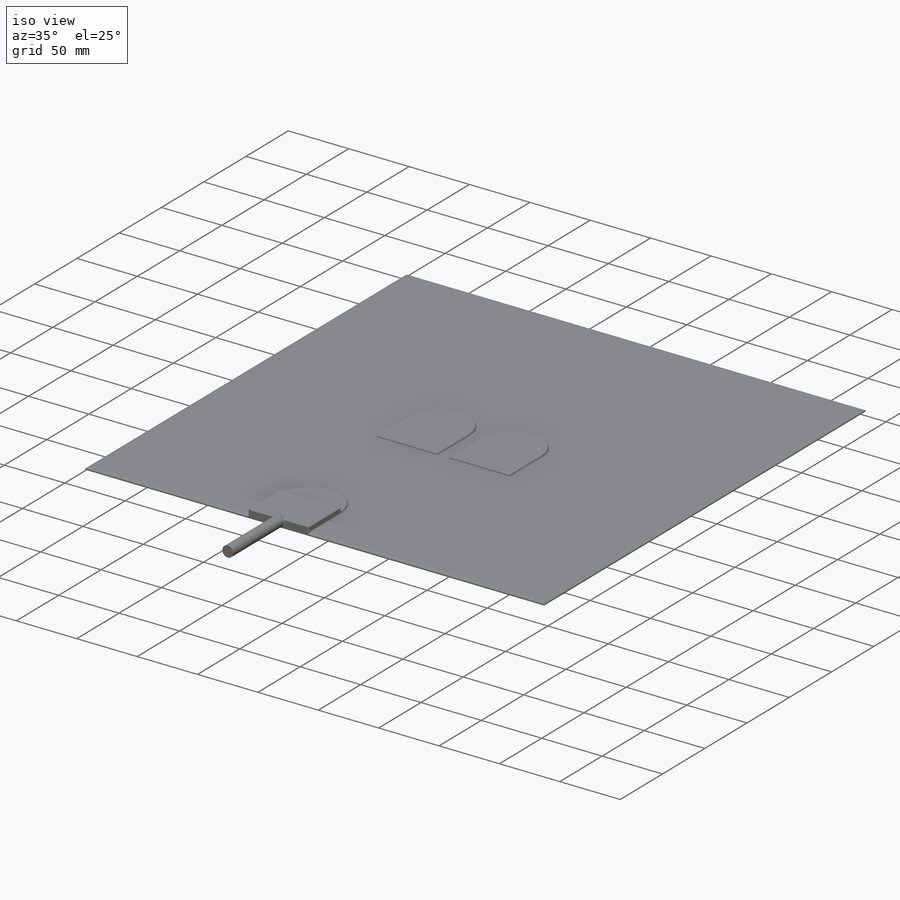
[diagram: iso view]
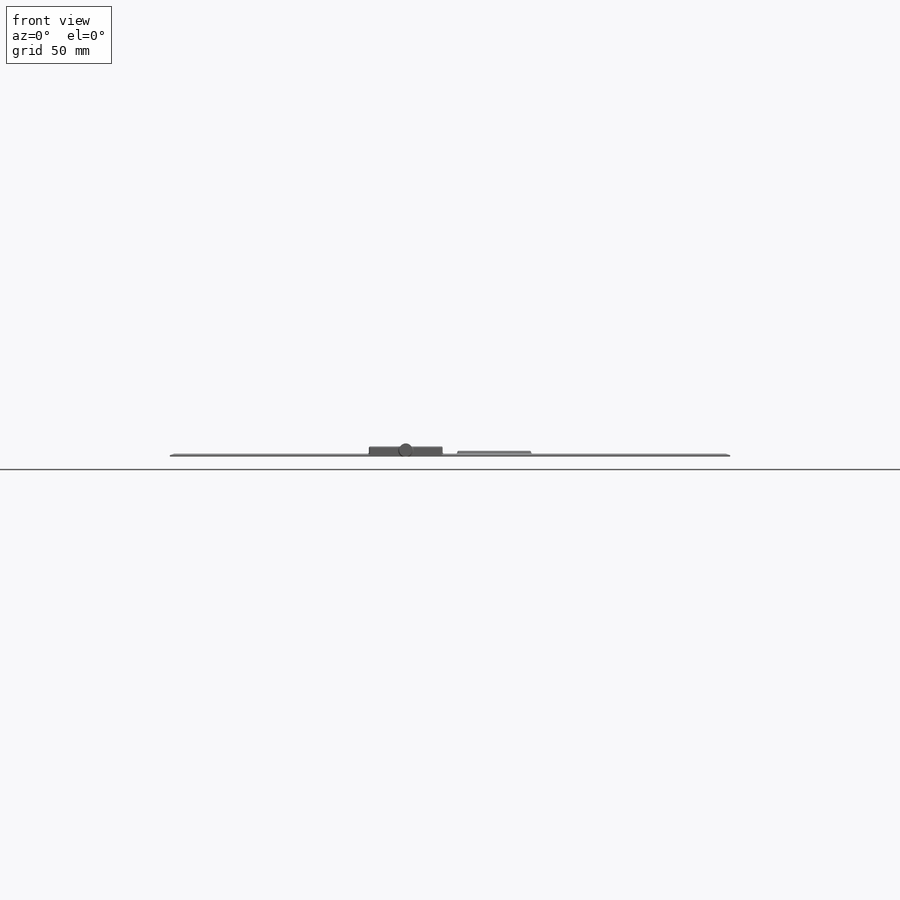
[diagram: front view]
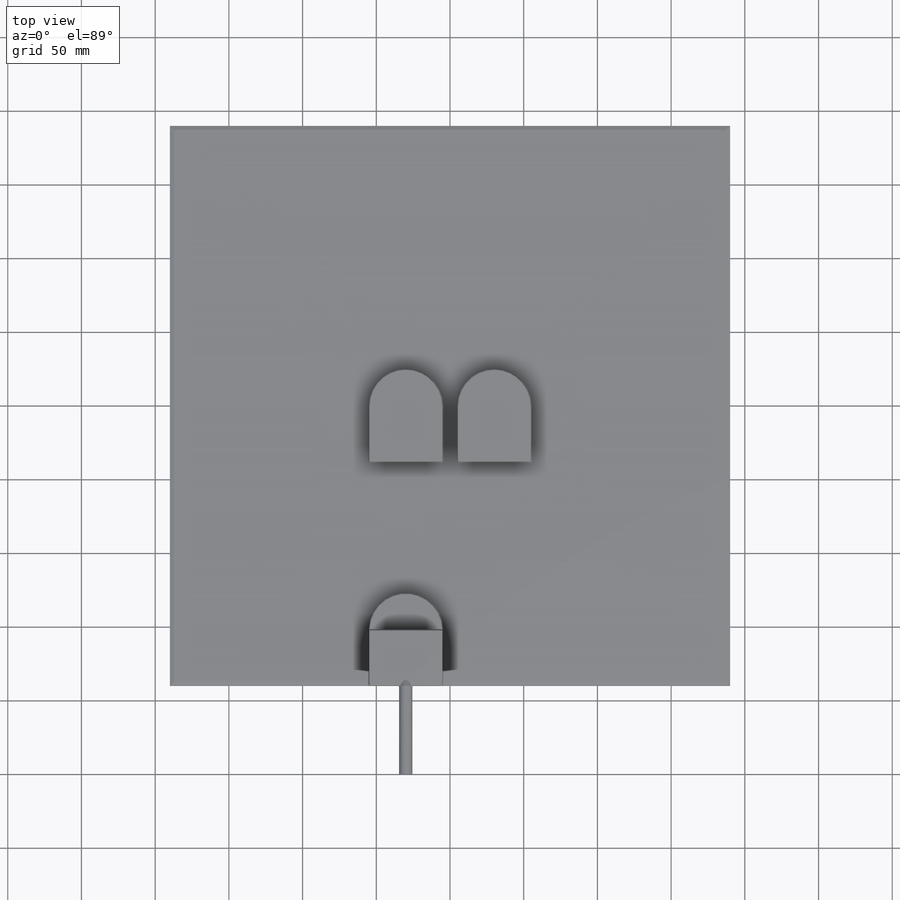
[diagram: top view]
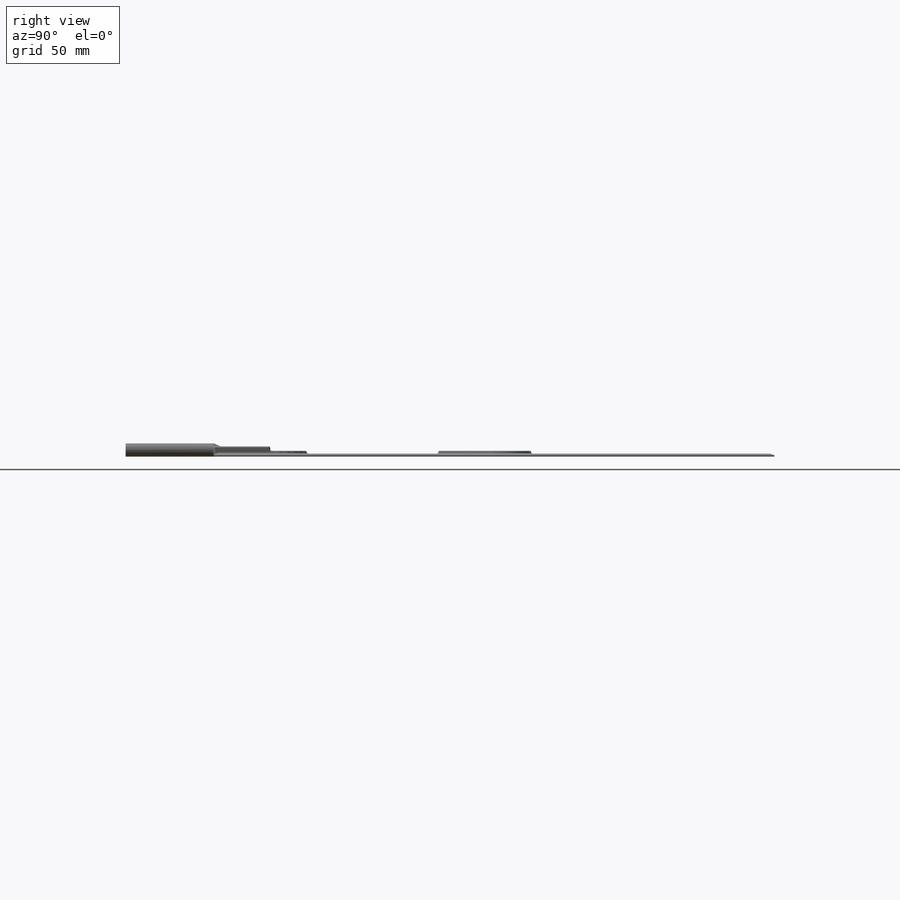
[diagram: right view]
SOLIDWORKS PART (.sldprt)
format: sldprt  version: not decoded by parser v0  size: 479,232 bytes
history: native  units: mm
features: sketch x9, extrude x4, fillet x4, plane x4, material x1, chamfer x1 (+13 scaffold rows collapsed)
feature tree (36):
  scaffold x13  (default folders/planes/origin — collapsed)
  material  "Rubber"
  sketch  "Sketch1"  dims[D1=380.0mm D2=380.0mm]
  extrude  "Boss-Extrude1"  Depth=2mm
  chamfer  "Chamfer1"  Distance=1mm Angle=70deg
  sketch  "Sketch2"  dims[c1.D1=50.0mm c1.D2=50.0mm c1.D3=25.0mm c1.D4=50.0mm c1.D5=50.0mm c1.D6=25.0mm c2.D2=38.0mm c2.D3=30.0mm c2.D5=38.0mm c2.D6=30.0mm]
  extrude  "Boss-Extrude2"  Depth=2mm
  sketch  "Sketch4"
  extrude  "Boss-Extrude4"  Depth=3mm
  sketch  "Sketch3"  dims[D1=9.0mm D2=9.0mm]
  extrude  "Boss-Extrude3"  Depth=60mm
  fillet  "Fillet1"  Radius=1mm
  fillet  "Fillet2"  Radius=1mm
  fillet  "Fillet3"  Radius=1mm
  fillet  "Fillet4"  Radius=1mm
  plane  "Plane1"  Offset=1mm
  plane  "Plane2"  Offset=1mm
  plane  "Plane3"
  sketch  "Sketch5"  dims[c1.D8=10.0mm c1.D1=1.0mm c1.D2=1.0mm c1.D3=1.0mm c1.D4=~127.692733mm c2.D4=~179.373638deg c3.D4=1.0mm c3.D5=1.0mm c3.D6=~89.289897mm c4.D6=~179.849643deg c5.D6=1.0mm c5.D7=~0.99797mm]
  sketch  "Sketch7"  dims[D1=4.0]
  sketch  "Sketch6"  dims[D1=4.0]
  sketch  "3DSketch2"
  plane  "Plane4"
  sketch  "Sketch8"  dims[D1=0.75mm]
decode coverage: 16 of 18 modeling features carry decoded parameters
note: ~ marks probable driven/reference dimensions
note: suppression state not decoded; provenance and decode notes live in map.json
